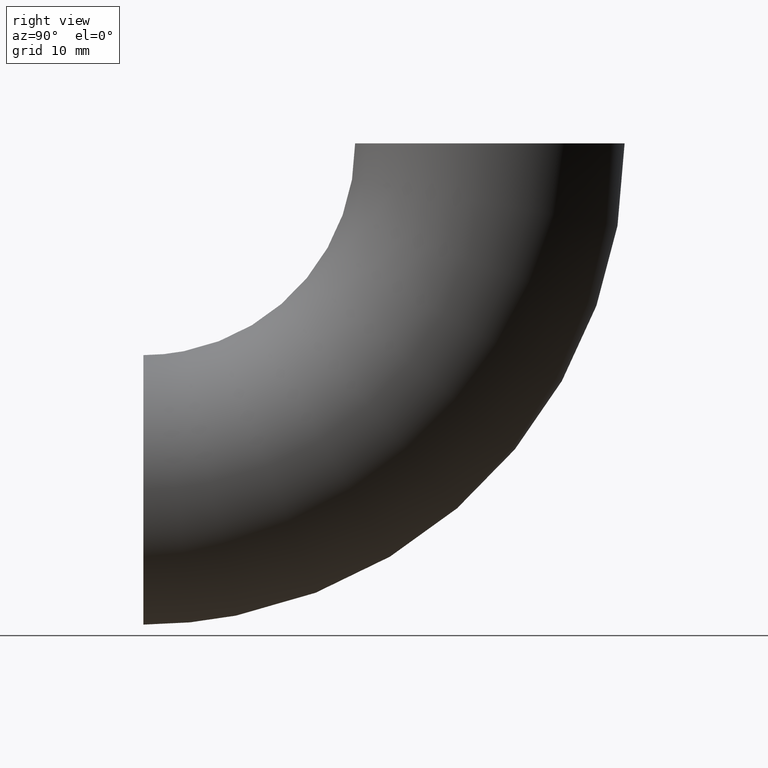
[diagram: clean part render]
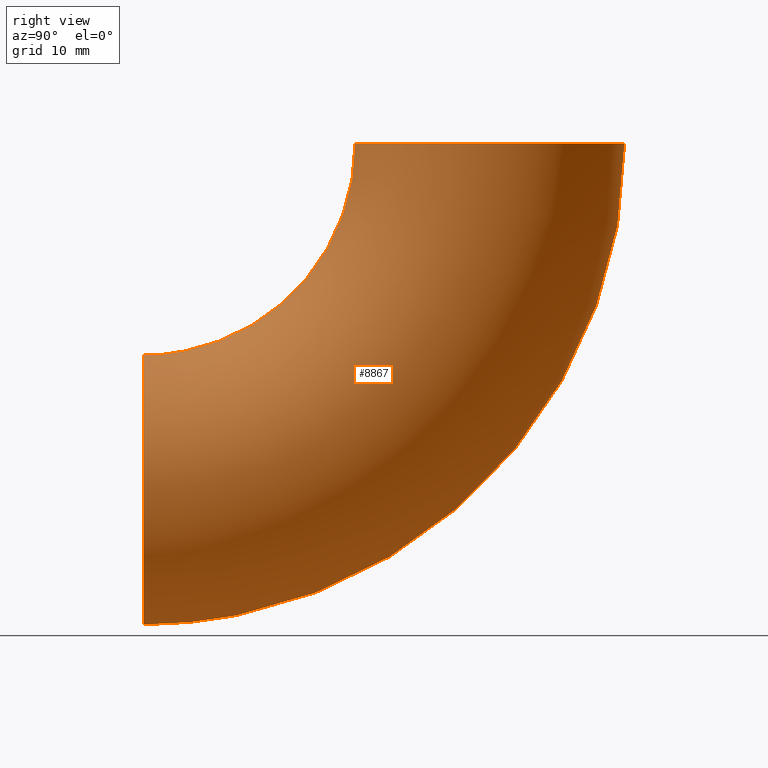
[diagram: same view with one face highlighted and labeled with its STEP entity id]
A machine part, right view. The second image highlights one B-rep face of the part: STEP entity #8867.
In plain terms, the highlighted toroidal blend (fillet) surface has major radius 45 mm and minor (blend) radius 17.5 mm.
Its self-contained STEP definition (entity closure, byte-faithful):
#455 = DIRECTION ( 'NONE',  ( 0.000000000000000000, -1.000000000000000000, 6.123233995736766036E-17 ) ) ;
#480 = VERTEX_POINT ( 'NONE', #9471 ) ;
#933 = TOROIDAL_SURFACE ( 'NONE', #10595, 45.00000000000000000, 17.50000000000000000 ) ;
#1443 = CARTESIAN_POINT ( 'NONE',  ( 0.000000000000000000, 0.000000000000000000, -45.00000000000000000 ) ) ;
#1762 = AXIS2_PLACEMENT_3D ( 'NONE', #1443, #8885, #3915 ) ;
#3246 = CIRCLE ( 'NONE', #1762, 17.50000000000000000 ) ;
#3651 = EDGE_LOOP ( 'NONE', ( #10755 ) ) ;
#3849 = DIRECTION ( 'NONE',  ( 0.000000000000000000, 6.123233995736766036E-17, 1.000000000000000000 ) ) ;
#3915 = DIRECTION ( 'NONE',  ( 0.000000000000000000, 0.000000000000000000, 1.000000000000000000 ) ) ;
#4393 = DIRECTION ( 'NONE',  ( 0.000000000000000000, 0.000000000000000000, 1.000000000000000000 ) ) ;
#4853 = CIRCLE ( 'NONE', #8064, 17.50000000000000000 ) ;
#5111 = EDGE_CURVE ( 'NONE', #5985, #5985, #4853, .T. ) ;
#5985 = VERTEX_POINT ( 'NONE', #6211 ) ;
#6211 = CARTESIAN_POINT ( 'NONE',  ( 0.000000000000000000, 27.49999999999999645, -1.683889348827610654E-15 ) ) ;
#6283 = EDGE_CURVE ( 'NONE', #480, #480, #3246, .T. ) ;
#7947 = ORIENTED_EDGE ( 'NONE', *, *, #5111, .F. ) ;
#8064 = AXIS2_PLACEMENT_3D ( 'NONE', #8123, #3849, #455 ) ;
#8123 = CARTESIAN_POINT ( 'NONE',  ( 0.000000000000000000, 45.00000000000000000, -2.755455298081544778E-15 ) ) ;
#8443 = CARTESIAN_POINT ( 'NONE',  ( 0.000000000000000000, 0.000000000000000000, 0.000000000000000000 ) ) ;
#8513 = FACE_OUTER_BOUND ( 'NONE', #10338, .T. ) ;
#8553 = DIRECTION ( 'NONE',  ( -1.000000000000000000, -0.000000000000000000, -0.000000000000000000 ) ) ;
#8867 = ADVANCED_FACE ( 'NONE', ( #8513, #10570 ), #933, .T. ) ;
#8885 = DIRECTION ( 'NONE',  ( 0.000000000000000000, 1.000000000000000000, 0.000000000000000000 ) ) ;
#9471 = CARTESIAN_POINT ( 'NONE',  ( 0.000000000000000000, 0.000000000000000000, -27.49999999999999645 ) ) ;
#10338 = EDGE_LOOP ( 'NONE', ( #7947 ) ) ;
#10570 = FACE_OUTER_BOUND ( 'NONE', #3651, .T. ) ;
#10595 = AXIS2_PLACEMENT_3D ( 'NONE', #8443, #8553, #4393 ) ;
#10755 = ORIENTED_EDGE ( 'NONE', *, *, #6283, .T. ) ;